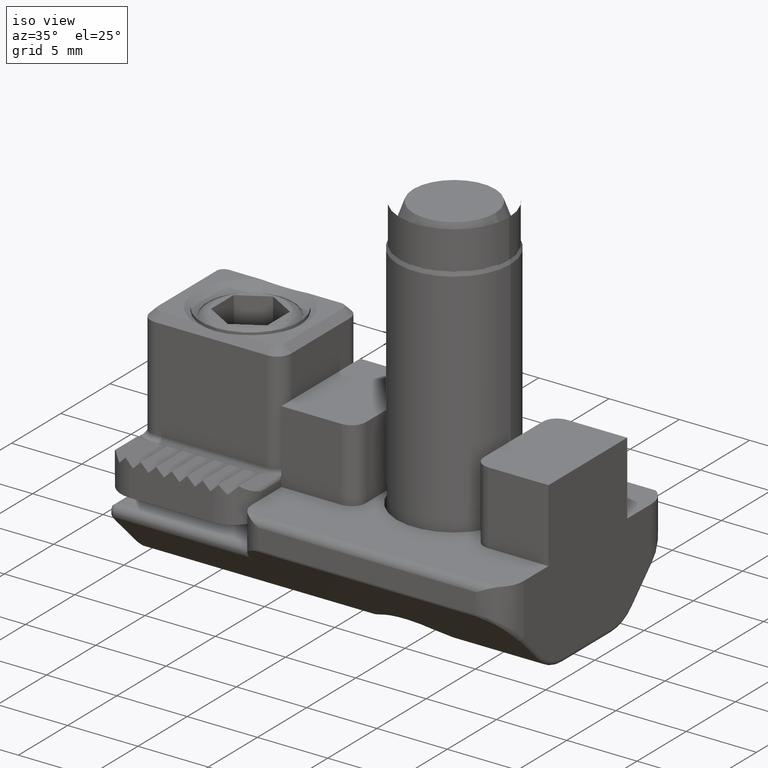
[diagram: clean part render]
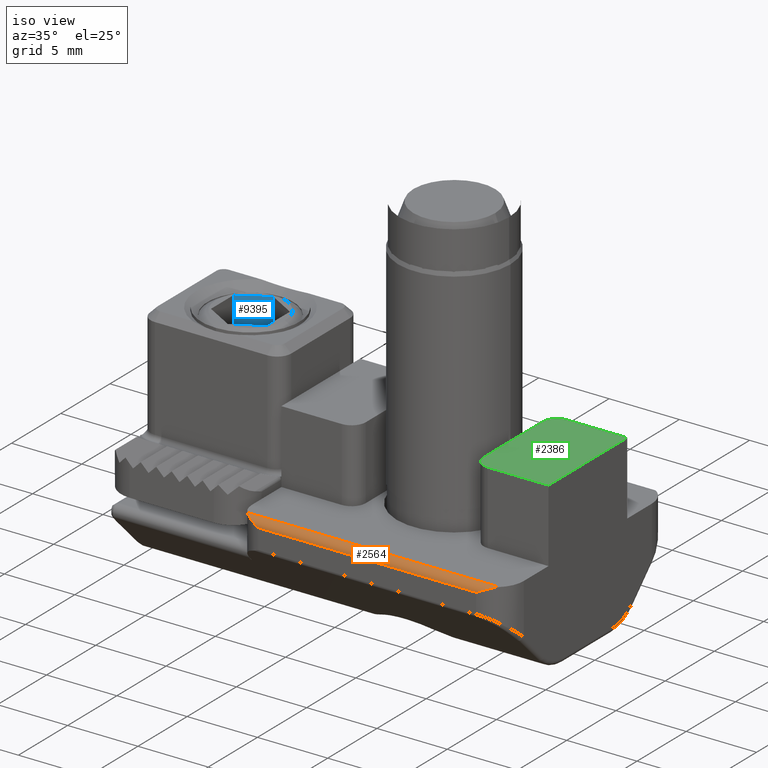
[diagram: same view with three faces highlighted in distinct colors, each labeled with its STEP entity id]
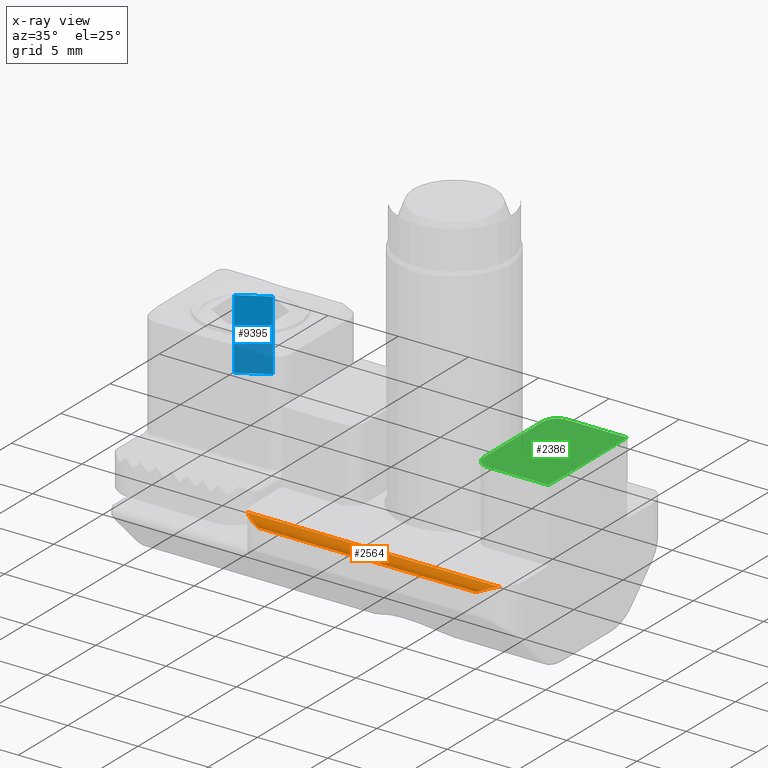
[diagram: x-ray of the same camera — body ghosted, the three highlighted faces saturated]
A machine part, iso view with three faces highlighted in distinct colors.
The next image is the same camera in x-ray (body ghosted, the three faces saturated) — at least one of them is partly hidden behind the body in this view.
Their STEP definitions:

[orange] entity #2564 — the highlighted cylindrical surface (edge-blend (fillet) strip) has radius 0.5 mm, axis along (-1, 0, 0).
#245=DIRECTION('',(-1.E0,0.E0,0.E0));
#246=VECTOR('',#245,1.794090964428E1);
#247=CARTESIAN_POINT('',(8.822875655532E0,-8.E0,-5.2E0));
#248=LINE('',#247,#246);
#1050=CARTESIAN_POINT('',(-9.118033988750E0,-8.E0,-5.2E0));
#1051=CARTESIAN_POINT('',(-9.079194694499E0,-8.043423651071E0,-5.2E0));
#1052=CARTESIAN_POINT('',(-8.997226469179E0,-8.124789736171E0,
-5.211226255849E0));
#1053=CARTESIAN_POINT('',(-8.866506444275E0,-8.228056662786E0,
-5.250868946991E0));
#1054=CARTESIAN_POINT('',(-8.729450832425E0,-8.313890681639E0,
-5.306669558845E0));
#1055=CARTESIAN_POINT('',(-8.588810162868E0,-8.382499222652E0,
-5.373495319938E0));
#1056=CARTESIAN_POINT('',(-8.443892964818E0,-8.435550318593E0,
-5.448922822932E0));
#1057=CARTESIAN_POINT('',(-8.296256457526E0,-8.473031929640E0,
-5.530218093306E0));
#1058=CARTESIAN_POINT('',(-8.148134551598E0,-8.495137919424E0,
-5.614473503107E0));
#1059=CARTESIAN_POINT('',(-8.049320303748E0,-8.5E0,-5.671524909355E0));
#1060=CARTESIAN_POINT('',(-8.E0,-8.5E0,-5.7E0));
#1065=CARTESIAN_POINT('',(7.5E0,-8.5E0,-5.7E0));
#1066=CARTESIAN_POINT('',(7.556473988223E0,-8.5E0,-5.671763005889E0));
#1067=CARTESIAN_POINT('',(7.669990047244E0,-8.495238134704E0,
-5.614999982967E0));
#1068=CARTESIAN_POINT('',(7.842321129072E0,-8.473067390262E0,
-5.530253799626E0));
#1069=CARTESIAN_POINT('',(8.013817235917E0,-8.435555108067E0,
-5.448939792092E0));
#1070=CARTESIAN_POINT('',(8.182735324718E0,-8.382625586604E0,
-5.373705085623E0));
#1071=CARTESIAN_POINT('',(8.345675393169E0,-8.315270050779E0,
-5.308024062755E0));
#1072=CARTESIAN_POINT('',(8.504318835524E0,-8.232763159737E0,
-5.253501271184E0));
#1073=CARTESIAN_POINT('',(8.663685959490E0,-8.130557869932E0,
-5.212600348350E0));
#1074=CARTESIAN_POINT('',(8.770497818477E0,-8.046192910353E0,-5.2E0));
#1075=CARTESIAN_POINT('',(8.822875655532E0,-8.E0,-5.2E0));
#1102=DIRECTION('',(-1.E0,0.E0,0.E0));
#1103=VECTOR('',#1102,1.55E1);
#1104=CARTESIAN_POINT('',(7.5E0,-8.5E0,-5.7E0));
#1105=LINE('',#1104,#1103);
#1564=CARTESIAN_POINT('',(8.822875655532E0,-8.E0,-5.2E0));
#1566=VERTEX_POINT('',#1564);
#1576=VERTEX_POINT('',#1065);
#1643=CARTESIAN_POINT('',(-9.118033988750E0,-8.E0,-5.2E0));
#1645=VERTEX_POINT('',#1643);
#1647=CARTESIAN_POINT('',(-8.E0,-8.5E0,-5.7E0));
#1649=VERTEX_POINT('',#1647);
#2551=CARTESIAN_POINT('',(9.569167765374E0,-8.E0,-5.7E0));
#2552=DIRECTION('',(-1.E0,0.E0,0.E0));
#2553=DIRECTION('',(0.E0,-1.E0,0.E0));
#2554=AXIS2_PLACEMENT_3D('',#2551,#2552,#2553);
#2555=CYLINDRICAL_SURFACE('',#2554,5.E-1);
#2556=ORIENTED_EDGE('',*,*,#2540,.F.);
#2557=ORIENTED_EDGE('',*,*,#1795,.F.);
#2559=ORIENTED_EDGE('',*,*,#2558,.F.);
#2561=ORIENTED_EDGE('',*,*,#2560,.T.);
#2562=EDGE_LOOP('',(#2556,#2557,#2559,#2561));
#2563=FACE_OUTER_BOUND('',#2562,.F.);
#2564=ADVANCED_FACE('',(#2563),#2555,.T.);
#1061=B_SPLINE_CURVE_WITH_KNOTS('',3,(#1050,#1051,#1052,#1053,#1054,#1055,#1056,
#1057,#1058,#1059,#1060),.UNSPECIFIED.,.F.,.F.,(4,1,1,1,1,1,1,1,4),(0.E0,
1.25E-1,2.5E-1,3.75E-1,5.E-1,6.25E-1,7.5E-1,8.75E-1,1.E0),.UNSPECIFIED.);
#1076=B_SPLINE_CURVE_WITH_KNOTS('',3,(#1065,#1066,#1067,#1068,#1069,#1070,#1071,
#1072,#1073,#1074,#1075),.UNSPECIFIED.,.F.,.F.,(4,1,1,1,1,1,1,1,4),(0.E0,
1.25E-1,2.5E-1,3.75E-1,5.E-1,6.25E-1,7.5E-1,8.75E-1,1.E0),.UNSPECIFIED.);
#1795=EDGE_CURVE('',#1566,#1645,#248,.T.);
#2540=EDGE_CURVE('',#1645,#1649,#1061,.T.);
#2558=EDGE_CURVE('',#1576,#1566,#1076,.T.);
#2560=EDGE_CURVE('',#1576,#1649,#1105,.T.);

[blue] entity #9395 — the highlighted planar face has unit normal (-0.5, 0.866, 0).
#8807=DIRECTION('',(-8.660254037844E-1,-5.E-1,0.E0));
#8808=VECTOR('',#8807,2.309401076759E0);
#8809=CARTESIAN_POINT('',(0.E0,2.309401076759E0,1.5E1));
#8810=LINE('',#8809,#8808);
#8886=DIRECTION('',(0.E0,0.E0,1.E0));
#8887=VECTOR('',#8886,5.E0);
#8888=CARTESIAN_POINT('',(-2.E0,1.154700538379E0,1.E1));
#8889=LINE('',#8888,#8887);
#8893=DIRECTION('',(0.E0,0.E0,1.E0));
#8894=VECTOR('',#8893,5.E0);
#8895=CARTESIAN_POINT('',(0.E0,2.309401076759E0,1.E1));
#8896=LINE('',#8895,#8894);
#8935=DIRECTION('',(-8.660254037844E-1,-5.E-1,0.E0));
#8936=VECTOR('',#8935,2.309401076759E0);
#8937=CARTESIAN_POINT('',(0.E0,2.309401076759E0,1.E1));
#8938=LINE('',#8937,#8936);
#8965=CARTESIAN_POINT('',(0.E0,2.309401076759E0,1.E1));
#8967=VERTEX_POINT('',#8965);
#8968=CARTESIAN_POINT('',(-2.E0,1.154700538379E0,1.E1));
#8969=VERTEX_POINT('',#8968);
#8977=CARTESIAN_POINT('',(0.E0,2.309401076759E0,1.5E1));
#8979=VERTEX_POINT('',#8977);
#8980=CARTESIAN_POINT('',(-2.E0,1.154700538379E0,1.5E1));
#8981=VERTEX_POINT('',#8980);
#9383=CARTESIAN_POINT('',(0.E0,2.309401076759E0,1.E1));
#9384=DIRECTION('',(-5.E-1,8.660254037844E-1,0.E0));
#9385=DIRECTION('',(-8.660254037844E-1,-5.E-1,0.E0));
#9386=AXIS2_PLACEMENT_3D('',#9383,#9384,#9385);
#9387=PLANE('',#9386);
#9388=ORIENTED_EDGE('',*,*,#9299,.F.);
#9389=ORIENTED_EDGE('',*,*,#9322,.F.);
#9391=ORIENTED_EDGE('',*,*,#9390,.T.);
#9392=ORIENTED_EDGE('',*,*,#9375,.T.);
#9393=EDGE_LOOP('',(#9388,#9389,#9391,#9392));
#9394=FACE_OUTER_BOUND('',#9393,.F.);
#9395=ADVANCED_FACE('',(#9394),#9387,.F.);
#9299=EDGE_CURVE('',#8979,#8981,#8810,.T.);
#9322=EDGE_CURVE('',#8967,#8979,#8896,.T.);
#9375=EDGE_CURVE('',#8969,#8981,#8889,.T.);
#9390=EDGE_CURVE('',#8967,#8969,#8938,.T.);

[green] entity #2386 — the highlighted planar face has unit normal (0, 0, 1).
#847=DIRECTION('',(1.E0,0.E0,0.E0));
#848=VECTOR('',#847,4.3E0);
#849=CARTESIAN_POINT('',(5.2E0,-4.E0,0.E0));
#850=LINE('',#849,#848);
#898=CARTESIAN_POINT('',(5.2E0,3.E0,0.E0));
#899=DIRECTION('',(0.E0,0.E0,1.E0));
#900=DIRECTION('',(0.E0,1.E0,0.E0));
#901=AXIS2_PLACEMENT_3D('',#898,#899,#900);
#906=DIRECTION('',(1.E0,0.E0,0.E0));
#907=VECTOR('',#906,4.3E0);
#908=CARTESIAN_POINT('',(5.2E0,4.E0,0.E0));
#909=LINE('',#908,#907);
#913=DIRECTION('',(0.E0,-1.E0,0.E0));
#914=VECTOR('',#913,8.E0);
#915=CARTESIAN_POINT('',(9.5E0,4.E0,0.E0));
#916=LINE('',#915,#914);
#920=CARTESIAN_POINT('',(5.2E0,-3.E0,0.E0));
#921=DIRECTION('',(0.E0,0.E0,1.E0));
#922=DIRECTION('',(-1.E0,0.E0,0.E0));
#923=AXIS2_PLACEMENT_3D('',#920,#921,#922);
#928=DIRECTION('',(0.E0,-1.E0,0.E0));
#929=VECTOR('',#928,6.E0);
#930=CARTESIAN_POINT('',(4.2E0,3.E0,0.E0));
#931=LINE('',#930,#929);
#1474=CARTESIAN_POINT('',(9.5E0,4.E0,0.E0));
#1475=CARTESIAN_POINT('',(9.5E0,-4.E0,0.E0));
#1476=VERTEX_POINT('',#1474);
#1477=VERTEX_POINT('',#1475);
#1545=CARTESIAN_POINT('',(4.2E0,3.E0,0.E0));
#1547=VERTEX_POINT('',#1545);
#1549=CARTESIAN_POINT('',(5.2E0,4.E0,0.E0));
#1551=VERTEX_POINT('',#1549);
#1552=CARTESIAN_POINT('',(4.2E0,-3.E0,0.E0));
#1554=VERTEX_POINT('',#1552);
#1556=CARTESIAN_POINT('',(5.2E0,-4.E0,0.E0));
#1557=VERTEX_POINT('',#1556);
#2369=CARTESIAN_POINT('',(-1.95E1,4.E0,0.E0));
#2370=DIRECTION('',(0.E0,0.E0,1.E0));
#2371=DIRECTION('',(0.E0,-1.E0,0.E0));
#2372=AXIS2_PLACEMENT_3D('',#2369,#2370,#2371);
#2373=PLANE('',#2372);
#2375=ORIENTED_EDGE('',*,*,#2374,.F.);
#2376=ORIENTED_EDGE('',*,*,#2280,.T.);
#2378=ORIENTED_EDGE('',*,*,#2377,.T.);
#2379=ORIENTED_EDGE('',*,*,#2347,.F.);
#2381=ORIENTED_EDGE('',*,*,#2380,.F.);
#2383=ORIENTED_EDGE('',*,*,#2382,.F.);
#2384=EDGE_LOOP('',(#2375,#2376,#2378,#2379,#2381,#2383));
#2385=FACE_OUTER_BOUND('',#2384,.F.);
#2386=ADVANCED_FACE('',(#2385),#2373,.T.);
#902=CIRCLE('',#901,1.E0);
#924=CIRCLE('',#923,1.E0);
#2280=EDGE_CURVE('',#1551,#1476,#909,.T.);
#2347=EDGE_CURVE('',#1557,#1477,#850,.T.);
#2374=EDGE_CURVE('',#1551,#1547,#902,.T.);
#2377=EDGE_CURVE('',#1476,#1477,#916,.T.);
#2380=EDGE_CURVE('',#1554,#1557,#924,.T.);
#2382=EDGE_CURVE('',#1547,#1554,#931,.T.);